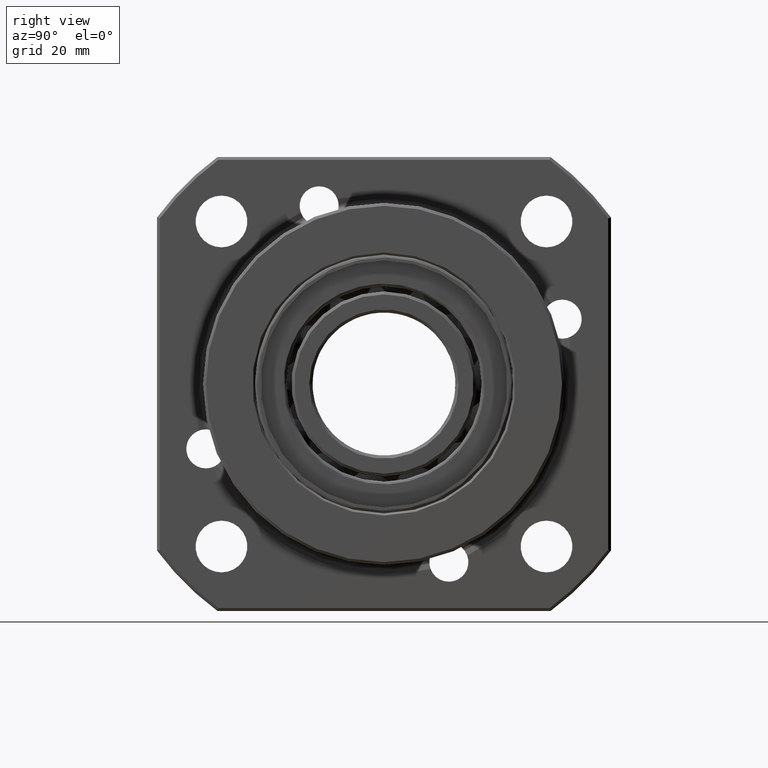
[diagram: clean part render]
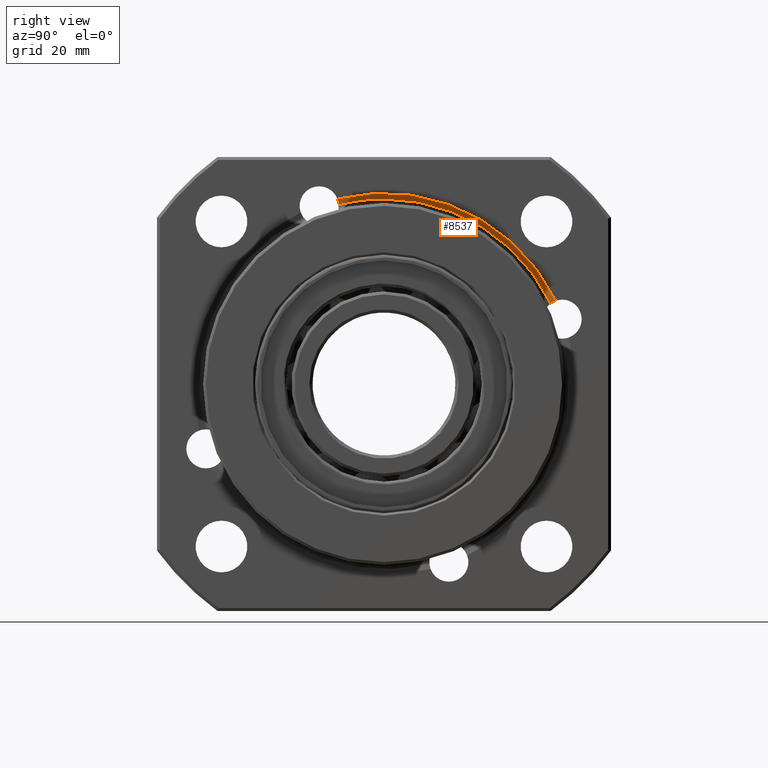
[diagram: same view with one face highlighted and labeled with its STEP entity id]
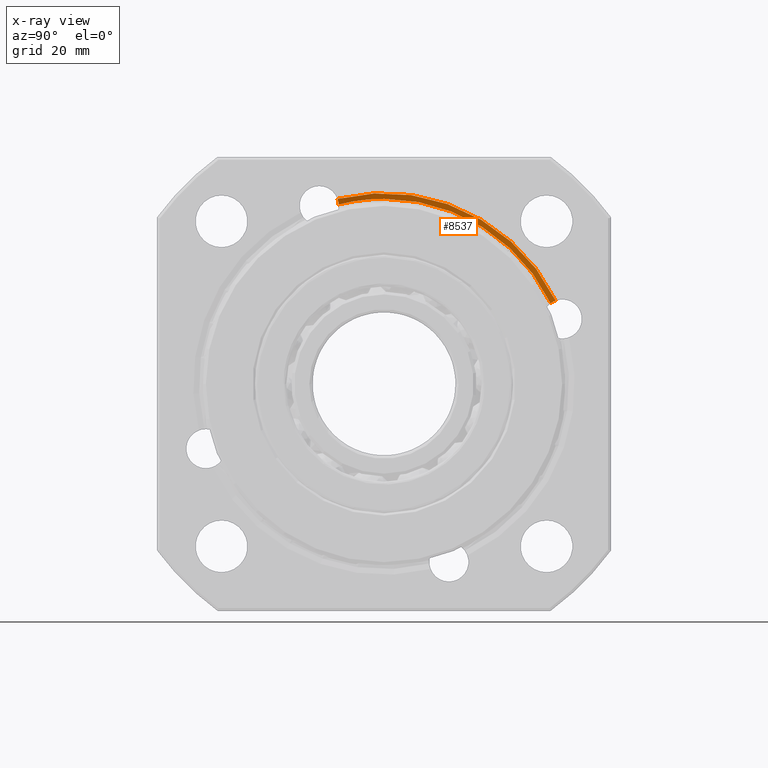
[diagram: x-ray of the same camera — body ghosted, the highlighted face saturated]
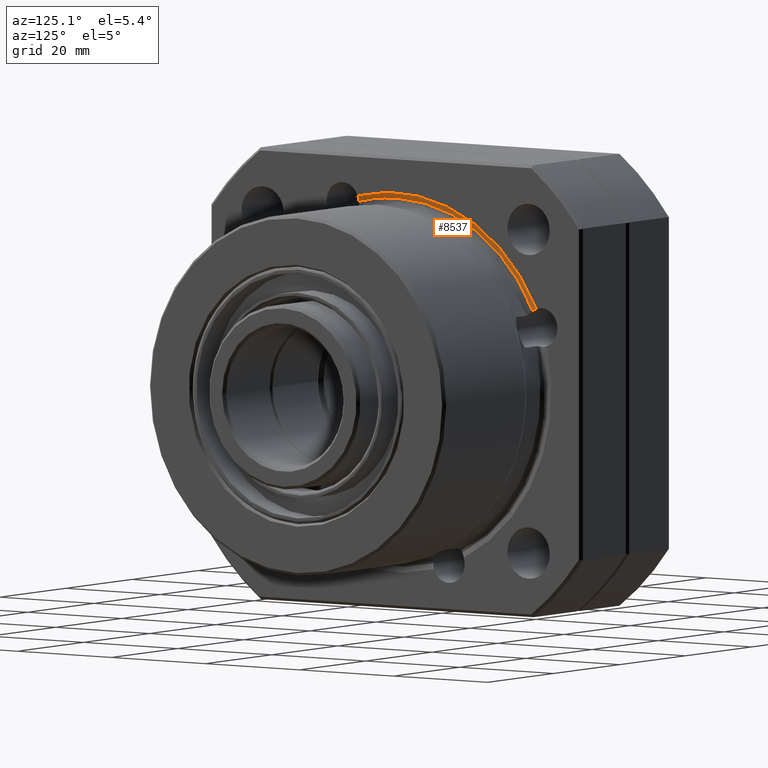
[diagram: same view with one face highlighted and labeled with its STEP entity id]
A machine part, right view. The second image highlights one B-rep face of the part: STEP entity #8537.
The next image is the same camera in x-ray: the body ghosted, the highlighted face saturated — about 0% of this face is hidden behind the body in this view.
A second angle (auxiliary view) of the same face is appended — the face is thin or edge-on in the first view.
In plain terms, the highlighted conical surface has half-angle 74.64 deg.
Its self-contained STEP definition (entity closure, byte-faithful):
#130 = DIRECTION ( 'NONE',  ( 0.0000000000000000000, 1.000000000000000000, 0.0000000000000000000 ) ) ;
#272 = CARTESIAN_POINT ( 'NONE',  ( 13.81859143742256400, 29.26597670831497000, 14.22434053822006900 ) ) ;
#986 = DIRECTION ( 'NONE',  ( -1.000000000000000000, 0.0000000000000000000, 0.0000000000000000000 ) ) ;
#1275 = B_SPLINE_CURVE_WITH_KNOTS ( 'NONE', 3,
 ( #8196, #5284, #272, #7267 ),
 .UNSPECIFIED., .F., .F.,
 ( 4, 4 ),
 ( 0.0000000000000000000, 0.001025326443954530700 ),
 .UNSPECIFIED. ) ;
#1440 = CONICAL_SURFACE ( 'NONE', #12125, 33.20000000000001000, 1.302713622844520900 ) ;
#2352 = CARTESIAN_POINT ( 'NONE',  ( 13.81859143742256400, -7.915330187143679200, 31.56226868378407600 ) ) ;
#2474 = AXIS2_PLACEMENT_3D ( 'NONE', #11864, #6154, #130 ) ;
#2788 = ORIENTED_EDGE ( 'NONE', *, *, #8986, .F. ) ;
#2800 = ORIENTED_EDGE ( 'NONE', *, *, #8079, .T. ) ;
#2805 = ORIENTED_EDGE ( 'NONE', *, *, #10081, .T. ) ;
#2813 = ORIENTED_EDGE ( 'NONE', *, *, #11795, .F. ) ;
#2827 = ORIENTED_EDGE ( 'NONE', *, *, #11411, .T. ) ;
#3325 = CARTESIAN_POINT ( 'NONE',  ( 13.72857557779164100, 28.99737464941154400, 14.02708748137910900 ) ) ;
#3629 = CIRCLE ( 'NONE', #2474, 33.20000000000000300 ) ;
#3704 = B_SPLINE_CURVE_WITH_KNOTS ( 'NONE', 3,
 ( #9269, #2352, #12153, #6448 ),
 .UNSPECIFIED., .F., .F.,
 ( 4, 4 ),
 ( 0.0000000000000000000, 0.001025326443954527500 ),
 .UNSPECIFIED. ) ;
#4271 = CARTESIAN_POINT ( 'NONE',  ( 13.99999999999999800, 0.0000000000000000000, 0.0000000000000000000 ) ) ;
#4277 = AXIS2_PLACEMENT_3D ( 'NONE', #10280, #4500, #11224 ) ;
#4290 = CIRCLE ( 'NONE', #4277, 32.21190649074652200 ) ;
#4356 = CARTESIAN_POINT ( 'NONE',  ( 13.99999999999999800, -8.100505325656532900, 32.19661183213243300 ) ) ;
#4500 = DIRECTION ( 'NONE',  ( -1.000000000000000000, 0.0000000000000000000, 0.0000000000000000000 ) ) ;
#5284 = CARTESIAN_POINT ( 'NONE',  ( 13.90908023907747700, 29.55717885858033600, 14.37868938216327300 ) ) ;
#6154 = DIRECTION ( 'NONE',  ( 1.000000000000000000, 2.612535355386757200E-017, 0.0000000000000000000 ) ) ;
#6448 = CARTESIAN_POINT ( 'NONE',  ( 13.99999999999999800, -8.100505325656532900, 32.19661183213243300 ) ) ;
#6992 = CARTESIAN_POINT ( 'NONE',  ( 13.72857557779164100, 0.0000000000000000000, 0.0000000000000000000 ) ) ;
#7083 = VERTEX_POINT ( 'NONE', #11535 ) ;
#7107 = FACE_OUTER_BOUND ( 'NONE', #10899, .T. ) ;
#7267 = CARTESIAN_POINT ( 'NONE',  ( 13.72857557779164100, 28.99737464941154400, 14.02708748137910900 ) ) ;
#7313 = CARTESIAN_POINT ( 'NONE',  ( 13.72857557779164100, -7.893780719825517900, 31.22971574824062900 ) ) ;
#7507 = AXIS2_PLACEMENT_3D ( 'NONE', #6992, #986, #7952 ) ;
#7952 = DIRECTION ( 'NONE',  ( 0.0000000000000000000, 0.0000000000000000000, 1.000000000000000000 ) ) ;
#8079 = EDGE_CURVE ( 'NONE', #9965, #8657, #12327, .T. ) ;
#8196 = CARTESIAN_POINT ( 'NONE',  ( 13.99999999999999800, 29.87094003679586500, 14.49023606840641600 ) ) ;
#8537 = ADVANCED_FACE ( 'NONE', ( #7107 ), #1440, .F. ) ;
#8570 = VERTEX_POINT ( 'NONE', #3325 ) ;
#8657 = VERTEX_POINT ( 'NONE', #10269 ) ;
#8986 = EDGE_CURVE ( 'NONE', #9965, #10759, #3704, .T. ) ;
#9269 = CARTESIAN_POINT ( 'NONE',  ( 13.72857557779164100, -7.893780719825517900, 31.22971574824062900 ) ) ;
#9965 = VERTEX_POINT ( 'NONE', #7313 ) ;
#10069 = DIRECTION ( 'NONE',  ( 1.000000000000000000, 2.612535355386757200E-017, 0.0000000000000000000 ) ) ;
#10081 = EDGE_CURVE ( 'NONE', #8657, #8570, #4290, .T. ) ;
#10269 = CARTESIAN_POINT ( 'NONE',  ( 13.72857557779164100, -3.081487911019577400E-030, 32.21190649074652200 ) ) ;
#10280 = CARTESIAN_POINT ( 'NONE',  ( 13.72857557779164100, 0.0000000000000000000, 0.0000000000000000000 ) ) ;
#10759 = VERTEX_POINT ( 'NONE', #4356 ) ;
#10899 = EDGE_LOOP ( 'NONE', ( #2788, #2800, #2805, #2813, #2827 ) ) ;
#11224 = DIRECTION ( 'NONE',  ( 0.0000000000000000000, 0.0000000000000000000, 1.000000000000000000 ) ) ;
#11411 = EDGE_CURVE ( 'NONE', #7083, #10759, #3629, .T. ) ;
#11535 = CARTESIAN_POINT ( 'NONE',  ( 13.99999999999999800, 29.87094003679586500, 14.49023606840641600 ) ) ;
#11795 = EDGE_CURVE ( 'NONE', #7083, #8570, #1275, .T. ) ;
#11864 = CARTESIAN_POINT ( 'NONE',  ( 13.99999999999999800, 0.0000000000000000000, 0.0000000000000000000 ) ) ;
#11930 = DIRECTION ( 'NONE',  ( 0.0000000000000000000, 1.000000000000000000, 0.0000000000000000000 ) ) ;
#12125 = AXIS2_PLACEMENT_3D ( 'NONE', #4271, #10069, #11930 ) ;
#12153 = CARTESIAN_POINT ( 'NONE',  ( 13.90908023907747700, -7.984273247043795200, 31.88455599727527100 ) ) ;
#12327 = CIRCLE ( 'NONE', #7507, 32.21190649074652200 ) ;